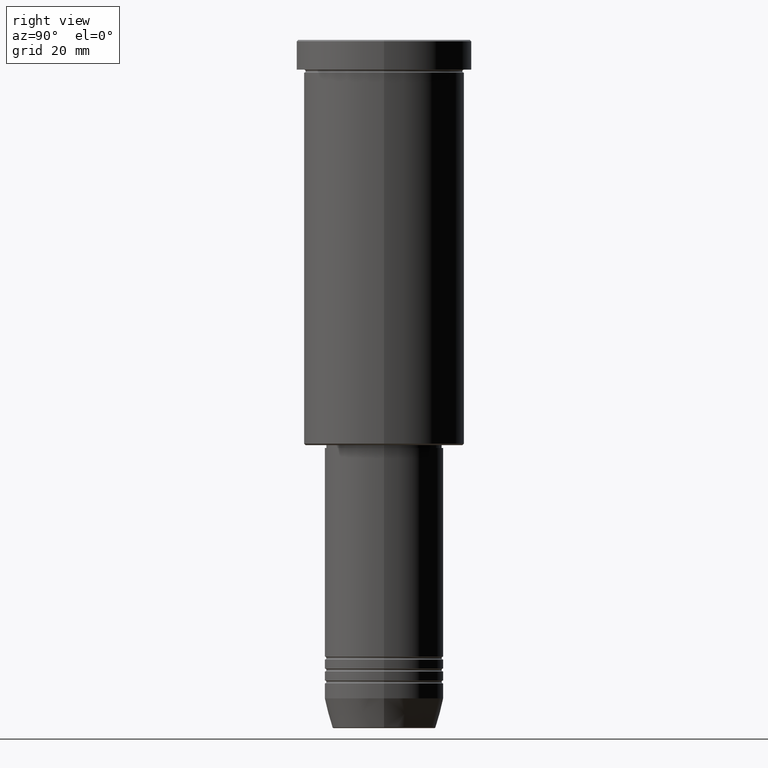
[diagram: clean part render]
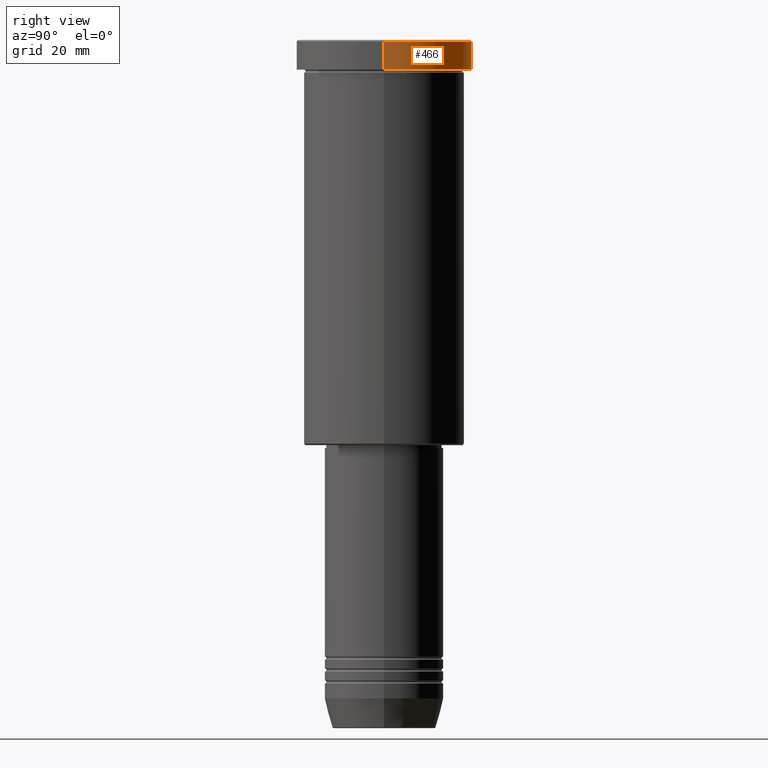
[diagram: same view with one face highlighted and labeled with its STEP entity id]
A machine part, right view. The second image highlights one B-rep face of the part: STEP entity #466.
In plain terms, the highlighted cylindrical surface (partial cylindrical patch) has radius 29.5 mm, axis along (-0, -0, 1).
Its self-contained STEP definition (entity closure, byte-faithful):
#18 = CYLINDRICAL_SURFACE ( 'NONE', #86, 29.50000000000000000 ) ;
#67 = AXIS2_PLACEMENT_3D ( 'NONE', #673, #850, #481 ) ;
#83 = EDGE_CURVE ( 'NONE', #583, #625, #528, .T. ) ;
#86 = AXIS2_PLACEMENT_3D ( 'NONE', #943, #499, #594 ) ;
#160 = AXIS2_PLACEMENT_3D ( 'NONE', #289, #1019, #934 ) ;
#181 = CIRCLE ( 'NONE', #67, 29.50000000000000000 ) ;
#252 = CARTESIAN_POINT ( 'NONE',  ( 29.50000000000000000, 0.000000000000000000, 0.000000000000000000 ) ) ;
#280 = ORIENTED_EDGE ( 'NONE', *, *, #875, .T. ) ;
#289 = CARTESIAN_POINT ( 'NONE',  ( 0.000000000000000000, 0.000000000000000000, -9.999999999999992895 ) ) ;
#345 = CARTESIAN_POINT ( 'NONE',  ( -29.50000000000000000, 3.612708057484691604E-15, -0.5000000000000004441 ) ) ;
#372 = EDGE_CURVE ( 'NONE', #583, #860, #579, .T. ) ;
#384 = CARTESIAN_POINT ( 'NONE',  ( -29.50000000000000000, 3.612708057484691604E-15, 0.000000000000000000 ) ) ;
#466 = ADVANCED_FACE ( 'NONE', ( #588 ), #18, .T. ) ;
#481 = DIRECTION ( 'NONE',  ( 1.000000000000000000, 0.000000000000000000, 0.000000000000000000 ) ) ;
#499 = DIRECTION ( 'NONE',  ( -0.000000000000000000, -0.000000000000000000, 1.000000000000000000 ) ) ;
#500 = ORIENTED_EDGE ( 'NONE', *, *, #898, .T. ) ;
#517 = CARTESIAN_POINT ( 'NONE',  ( 29.50000000000000000, 0.000000000000000000, -9.999999999999992895 ) ) ;
#528 = LINE ( 'NONE', #252, #953 ) ;
#572 = LINE ( 'NONE', #384, #1118 ) ;
#579 = CIRCLE ( 'NONE', #160, 29.50000000000000000 ) ;
#582 = VERTEX_POINT ( 'NONE', #345 ) ;
#583 = VERTEX_POINT ( 'NONE', #517 ) ;
#588 = FACE_OUTER_BOUND ( 'NONE', #1048, .T. ) ;
#594 = DIRECTION ( 'NONE',  ( 1.000000000000000000, 0.000000000000000000, 0.000000000000000000 ) ) ;
#614 = CARTESIAN_POINT ( 'NONE',  ( 29.50000000000000000, 0.000000000000000000, -0.5000000000000004441 ) ) ;
#625 = VERTEX_POINT ( 'NONE', #614 ) ;
#673 = CARTESIAN_POINT ( 'NONE',  ( 0.000000000000000000, 0.000000000000000000, -0.5000000000000004441 ) ) ;
#850 = DIRECTION ( 'NONE',  ( 0.000000000000000000, 0.000000000000000000, -1.000000000000000000 ) ) ;
#860 = VERTEX_POINT ( 'NONE', #1031 ) ;
#875 = EDGE_CURVE ( 'NONE', #582, #625, #181, .T. ) ;
#878 = DIRECTION ( 'NONE',  ( -0.000000000000000000, -0.000000000000000000, 1.000000000000000000 ) ) ;
#898 = EDGE_CURVE ( 'NONE', #860, #582, #572, .T. ) ;
#934 = DIRECTION ( 'NONE',  ( 1.000000000000000000, 0.000000000000000000, 0.000000000000000000 ) ) ;
#943 = CARTESIAN_POINT ( 'NONE',  ( 0.000000000000000000, 0.000000000000000000, 0.000000000000000000 ) ) ;
#953 = VECTOR ( 'NONE', #878, 1000.000000000000000 ) ;
#954 = DIRECTION ( 'NONE',  ( -0.000000000000000000, -0.000000000000000000, 1.000000000000000000 ) ) ;
#1019 = DIRECTION ( 'NONE',  ( -0.000000000000000000, -0.000000000000000000, 1.000000000000000000 ) ) ;
#1030 = ORIENTED_EDGE ( 'NONE', *, *, #372, .T. ) ;
#1031 = CARTESIAN_POINT ( 'NONE',  ( -29.50000000000000000, 3.612708057484691604E-15, -9.999999999999992895 ) ) ;
#1048 = EDGE_LOOP ( 'NONE', ( #1030, #500, #280, #1122 ) ) ;
#1118 = VECTOR ( 'NONE', #954, 1000.000000000000000 ) ;
#1122 = ORIENTED_EDGE ( 'NONE', *, *, #83, .F. ) ;